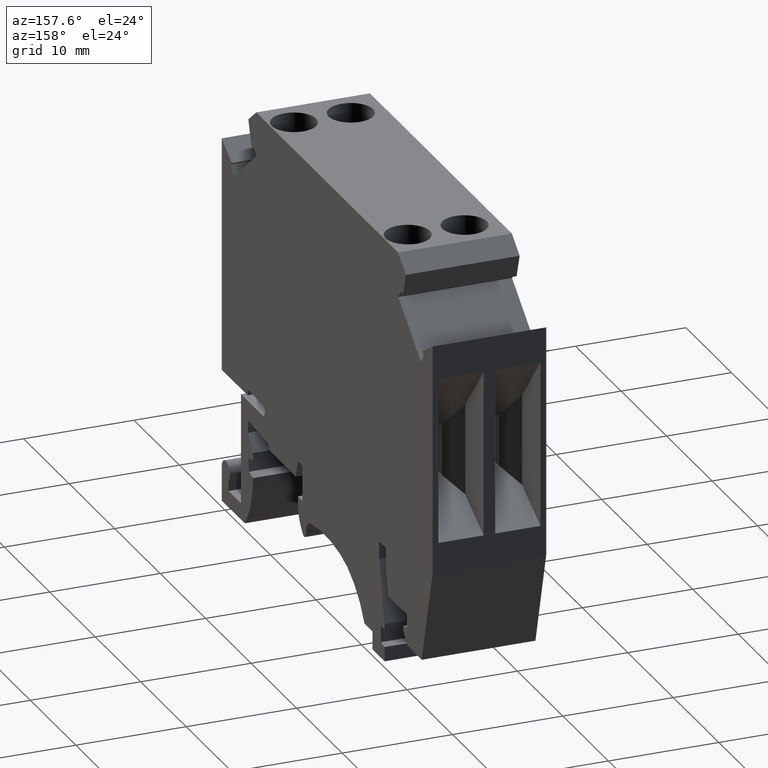
[diagram: clean part render]
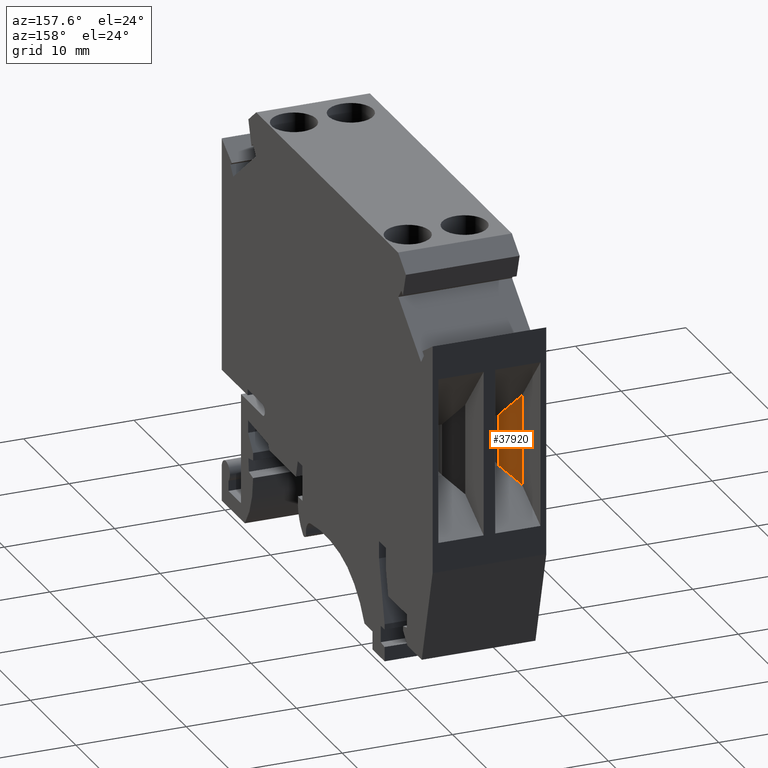
[diagram: same view with one face highlighted and labeled with its STEP entity id]
A machine part, auxiliary view. The second image highlights one B-rep face of the part: STEP entity #37920.
In plain terms, the highlighted planar face has unit normal (0.866, 0.5, 0).
Its self-contained STEP definition (entity closure, byte-faithful):
#34980=CARTESIAN_POINT('',(-2.55533629453588,29.6363010812415,
0.525000000000004));
#34990=VERTEX_POINT('',#34980);
#35020=CARTESIAN_POINT('',(-19.9165433974443,9.53385075155829,
10.548497594321));
#35030=DIRECTION('',(-0.611526032477599,-0.70808277444774,
0.353064719467406));
#35040=VECTOR('',#35030,1.);
#35050=LINE('',#35020,#35040);
#35060=CARTESIAN_POINT('',(-4.67709853380776,27.1795237515583,1.75));
#35070=VERTEX_POINT('',#35060);
#35080=EDGE_CURVE('',#34990,#35070,#35050,.T.);
#36740=CARTESIAN_POINT('',(-4.67709853380776,22.5295237515583,1.75));
#36750=VERTEX_POINT('',#36740);
#36780=CARTESIAN_POINT('',(13.4527094661923,13.1343196058094,
-8.71724952915626));
#36790=DIRECTION('',(0.790104408757777,-0.409446819113338,
-0.456166993084213));
#36800=VECTOR('',#36790,1.);
#36810=LINE('',#36780,#36800);
#36820=CARTESIAN_POINT('',(-2.55533629453588,21.4299870445672,
0.525000000000004));
#36830=VERTEX_POINT('',#36820);
#36840=EDGE_CURVE('',#36750,#36830,#36810,.T.);
#37330=CARTESIAN_POINT('',(-4.67709853380776,9.53385075155829,1.75));
#37340=DIRECTION('',(0.,-1.,0.));
#37350=VECTOR('',#37340,1.);
#37360=LINE('',#37330,#37350);
#37370=EDGE_CURVE('',#35070,#36750,#37360,.T.);
#37760=CARTESIAN_POINT('',(-4.67709853380776,22.5295237515583,1.75));
#37770=DIRECTION('',(0.5,0.,0.866025403784439));
#37780=DIRECTION('',(-0.866025403784439,0.,0.5));
#37790=AXIS2_PLACEMENT_3D('',#37760,#37770,#37780);
#37800=PLANE('',#37790);
#37810=CARTESIAN_POINT('',(-2.55533629453588,9.53385075155829,
0.525000000000004));
#37820=DIRECTION('',(0.,1.,0.));
#37830=VECTOR('',#37820,1.);
#37840=LINE('',#37810,#37830);
#37850=EDGE_CURVE('',#36830,#34990,#37840,.T.);
#37860=ORIENTED_EDGE('',*,*,#37850,.T.);
#37870=ORIENTED_EDGE('',*,*,#36840,.T.);
#37880=ORIENTED_EDGE('',*,*,#37370,.T.);
#37890=ORIENTED_EDGE('',*,*,#35080,.T.);
#37900=EDGE_LOOP('',(#37890,#37880,#37870,#37860));
#37910=FACE_OUTER_BOUND('',#37900,.T.);
#37920=ADVANCED_FACE('',(#37910),#37800,.T.);